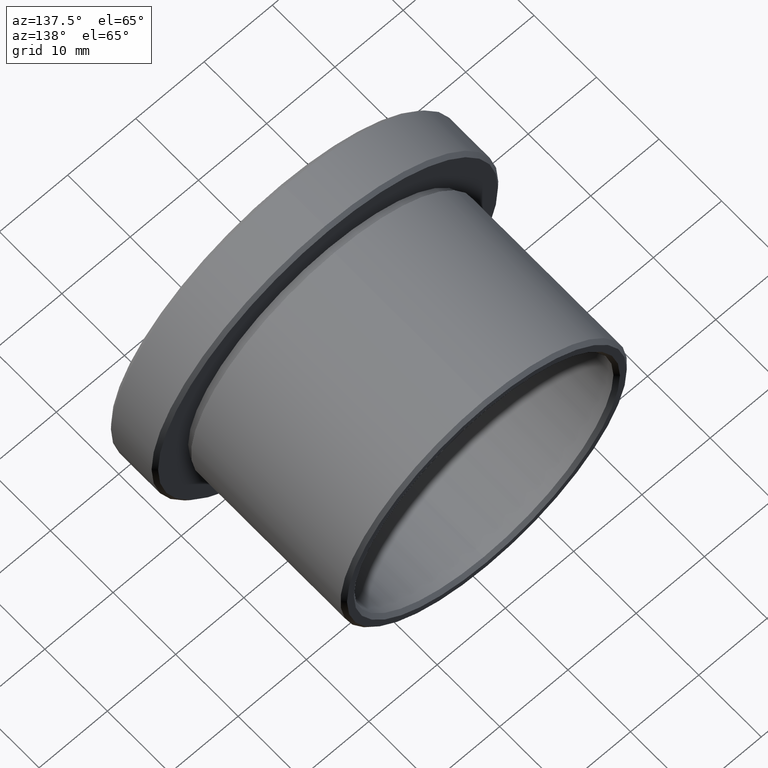
[diagram: clean part render]
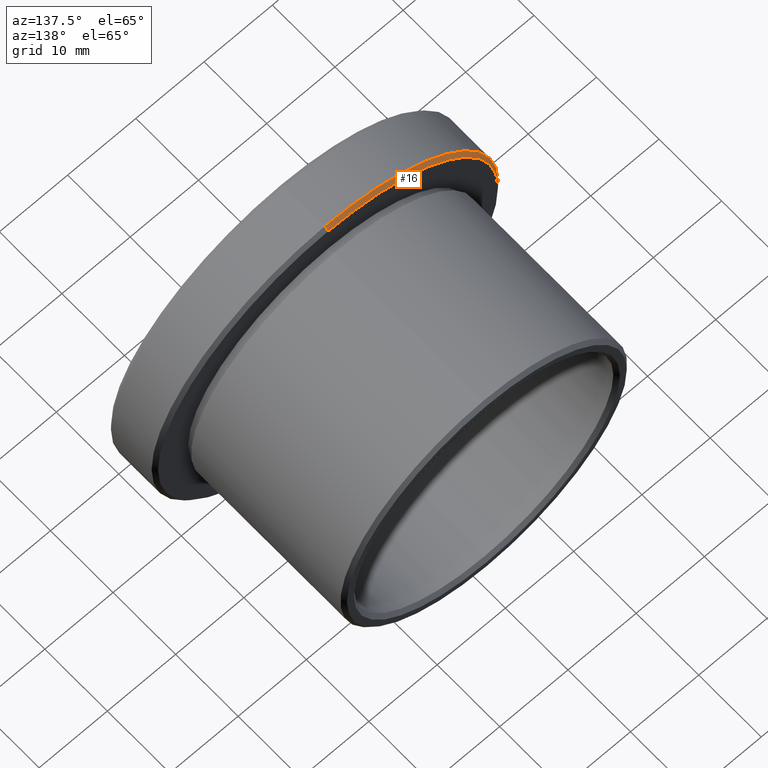
[diagram: same view with one face highlighted and labeled with its STEP entity id]
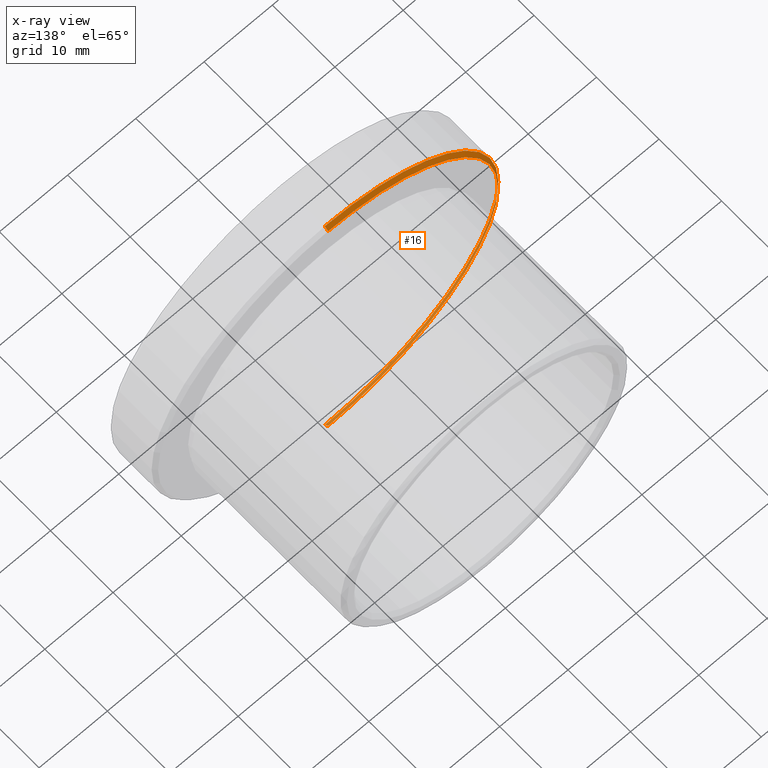
[diagram: x-ray of the same camera — body ghosted, the highlighted face saturated]
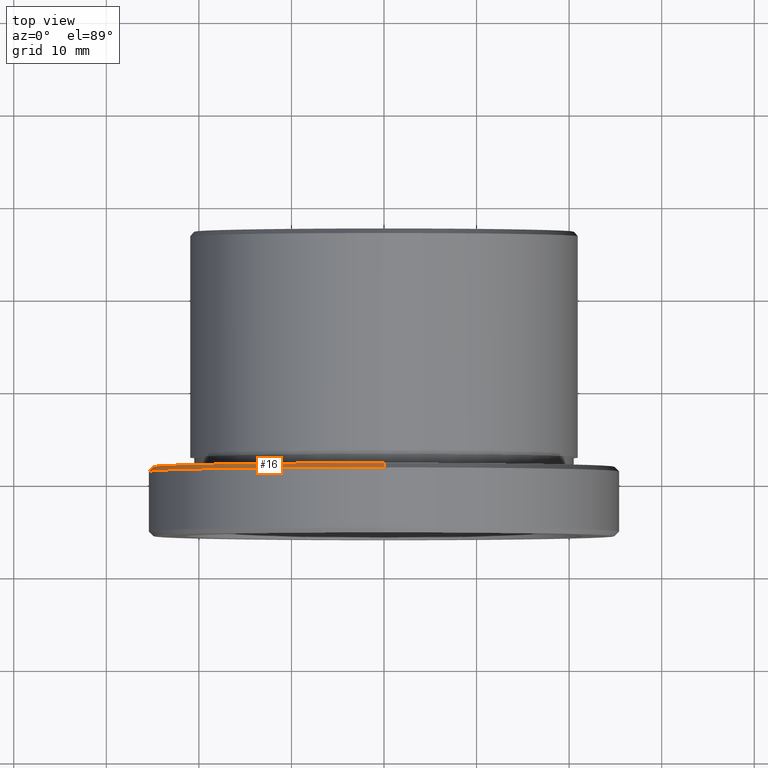
[diagram: same view with one face highlighted and labeled with its STEP entity id]
A machine part, auxiliary view. The second image highlights one B-rep face of the part: STEP entity #16.
The next image is the same camera in x-ray: the body ghosted, the highlighted face saturated — about 37% of this face is hidden behind the body in this view.
A second angle (top view) of the same face is appended — the face is thin or edge-on in the first view.
In plain terms, the highlighted conical surface has half-angle 45 deg.
Its self-contained STEP definition (entity closure, byte-faithful):
#4 = VECTOR ( 'NONE', #263, 1000.000000000000000 ) ;
#6 = VERTEX_POINT ( 'NONE', #183 ) ;
#16 = ADVANCED_FACE ( 'NONE', ( #280 ), #129, .T. ) ;
#34 = ORIENTED_EDGE ( 'NONE', *, *, #689, .T. ) ;
#38 = CARTESIAN_POINT ( 'NONE',  ( 0.0000000000000000000, 1.142854174566894300, -25.40000000000000600 ) ) ;
#60 = CARTESIAN_POINT ( 'NONE',  ( 0.0000000000000000000, 1.642854174566894800, -24.90000000000000200 ) ) ;
#74 = VECTOR ( 'NONE', #618, 1000.000000000000000 ) ;
#97 = VERTEX_POINT ( 'NONE', #60 ) ;
#99 = LINE ( 'NONE', #106, #74 ) ;
#106 = CARTESIAN_POINT ( 'NONE',  ( 3.110602869834277700E-015, 1.142854174566894300, 25.40000000000000600 ) ) ;
#129 = CONICAL_SURFACE ( 'NONE', #867, 25.40000000000000600, 0.7853981633974518300 ) ;
#139 = CARTESIAN_POINT ( 'NONE',  ( 3.079986699855593900E-015, 1.642854174566894800, 24.90000000000000200 ) ) ;
#183 = CARTESIAN_POINT ( 'NONE',  ( 0.0000000000000000000, 1.142854174566894300, 25.40000000000000600 ) ) ;
#228 = DIRECTION ( 'NONE',  ( 0.0000000000000000000, 0.0000000000000000000, 1.000000000000000000 ) ) ;
#249 = CIRCLE ( 'NONE', #338, 25.40000000000000600 ) ;
#251 = DIRECTION ( 'NONE',  ( 0.0000000000000000000, 0.0000000000000000000, -1.000000000000000000 ) ) ;
#255 = DIRECTION ( 'NONE',  ( 0.0000000000000000000, -1.000000000000000000, 0.0000000000000000000 ) ) ;
#263 = DIRECTION ( 'NONE',  ( 0.0000000000000000000, -0.7071067811865450200, -0.7071067811865500200 ) ) ;
#275 = AXIS2_PLACEMENT_3D ( 'NONE', #500, #775, #490 ) ;
#280 = FACE_OUTER_BOUND ( 'NONE', #596, .T. ) ;
#314 = ORIENTED_EDGE ( 'NONE', *, *, #591, .F. ) ;
#322 = LINE ( 'NONE', #38, #4 ) ;
#338 = AXIS2_PLACEMENT_3D ( 'NONE', #841, #779, #228 ) ;
#388 = VERTEX_POINT ( 'NONE', #429 ) ;
#418 = VERTEX_POINT ( 'NONE', #139 ) ;
#429 = CARTESIAN_POINT ( 'NONE',  ( 3.110602869834277700E-015, 1.142854174566894300, -25.40000000000000600 ) ) ;
#490 = DIRECTION ( 'NONE',  ( 0.0000000000000000000, 0.0000000000000000000, 1.000000000000000000 ) ) ;
#500 = CARTESIAN_POINT ( 'NONE',  ( 0.0000000000000000000, 1.642854174566894800, 0.0000000000000000000 ) ) ;
#591 = EDGE_CURVE ( 'NONE', #418, #6, #99, .T. ) ;
#596 = EDGE_LOOP ( 'NONE', ( #314, #690, #873, #34 ) ) ;
#608 = CARTESIAN_POINT ( 'NONE',  ( 0.0000000000000000000, 1.142854174566894300, 0.0000000000000000000 ) ) ;
#613 = EDGE_CURVE ( 'NONE', #97, #388, #322, .T. ) ;
#618 = DIRECTION ( 'NONE',  ( 8.659560562354963700E-017, -0.7071067811865450200, 0.7071067811865500200 ) ) ;
#644 = CIRCLE ( 'NONE', #275, 24.90000000000000200 ) ;
#689 = EDGE_CURVE ( 'NONE', #388, #6, #249, .T. ) ;
#690 = ORIENTED_EDGE ( 'NONE', *, *, #737, .F. ) ;
#737 = EDGE_CURVE ( 'NONE', #97, #418, #644, .T. ) ;
#775 = DIRECTION ( 'NONE',  ( -0.0000000000000000000, 1.000000000000000000, -0.0000000000000000000 ) ) ;
#779 = DIRECTION ( 'NONE',  ( -0.0000000000000000000, 1.000000000000000000, -0.0000000000000000000 ) ) ;
#841 = CARTESIAN_POINT ( 'NONE',  ( 0.0000000000000000000, 1.142854174566894300, 0.0000000000000000000 ) ) ;
#867 = AXIS2_PLACEMENT_3D ( 'NONE', #608, #255, #251 ) ;
#873 = ORIENTED_EDGE ( 'NONE', *, *, #613, .T. ) ;